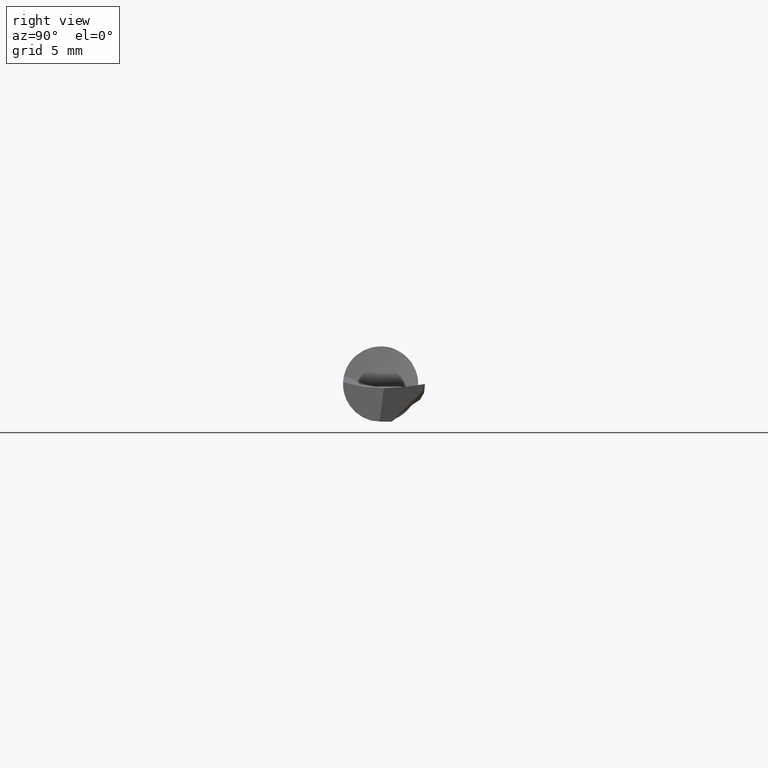
[diagram: clean part render]
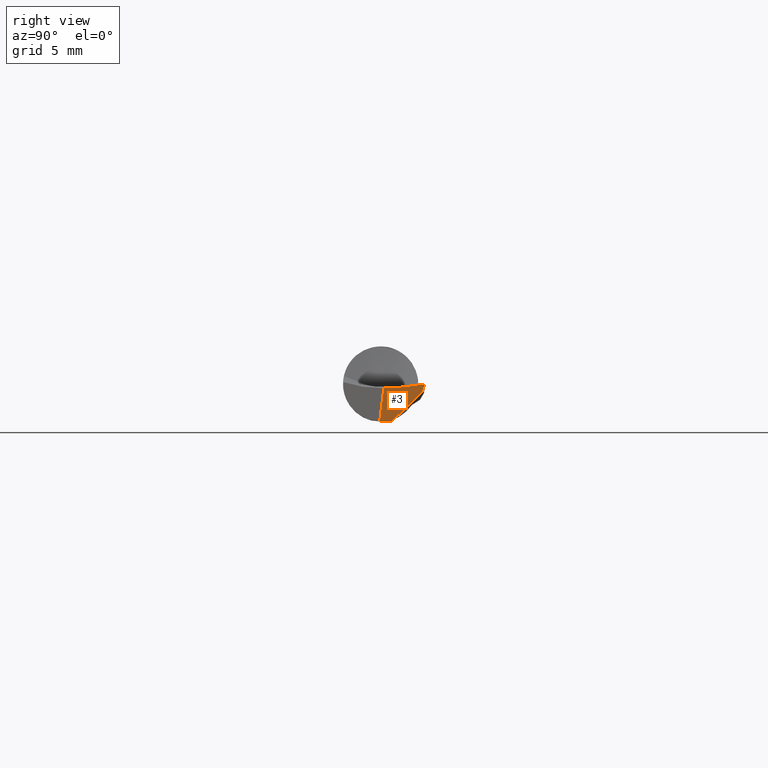
[diagram: same view with one face highlighted and labeled with its STEP entity id]
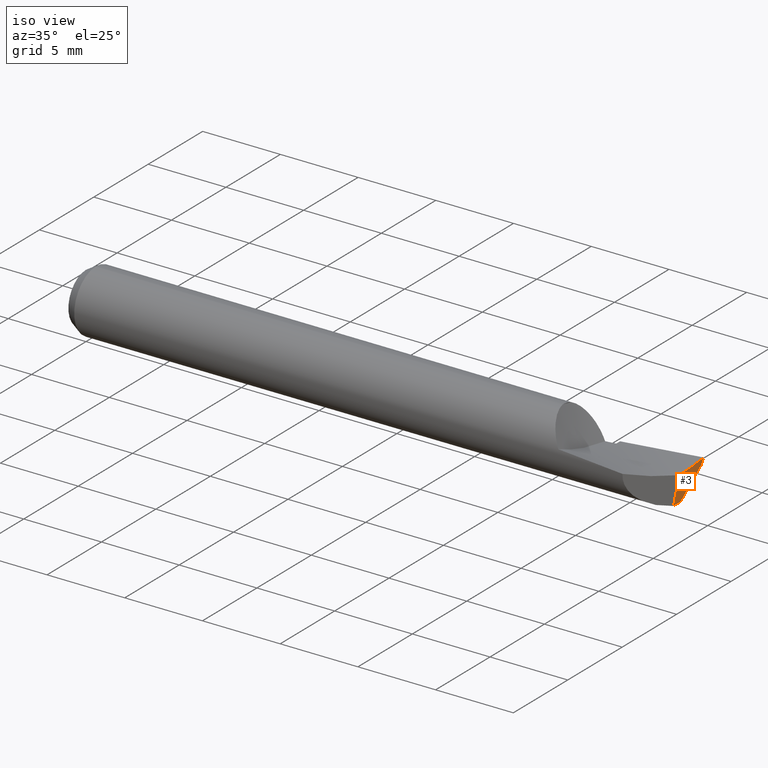
[diagram: same view with one face highlighted and labeled with its STEP entity id]
A machine part, right view. The second image highlights one B-rep face of the part: STEP entity #3.
A second angle (iso view) of the same face is appended — the face is thin or edge-on in the first view.
In plain terms, the highlighted planar face has unit normal (-0.9925, 0.0087, 0.1219).
Its self-contained STEP definition (entity closure, byte-faithful):
#1 = CARTESIAN_POINT ( 'NONE',  ( 1.489609005750359483, -0.001329931869569869361, -0.07799149631257126791 ) ) ;
#3 = ADVANCED_FACE ( 'NONE', ( #514 ), #50, .F. ) ;
#10 = CARTESIAN_POINT ( 'NONE',  ( 1.492937526068931042, 0.04743936089112409799, -0.05435003363301930263 ) ) ;
#18 = VERTEX_POINT ( 'NONE', #427 ) ;
#19 = B_SPLINE_CURVE_WITH_KNOTS ( 'NONE', 3,
 ( #396, #294, #496, #29 ),
 .UNSPECIFIED., .F., .F.,
 ( 4, 4 ),
 ( 4.377117882982191852E-19, 0.002180545539404321869 ),
 .UNSPECIFIED. ) ;
#26 = CARTESIAN_POINT ( 'NONE',  ( 1.489597512497185861, -0.002527279204093492871, -0.07799999999999999989 ) ) ;
#29 = CARTESIAN_POINT ( 'NONE',  ( 1.498210553536294398, 0.006610553536293644825, -0.008504524376991735857 ) ) ;
#44 = CARTESIAN_POINT ( 'NONE',  ( 1.498210553536294398, 0.006610553536293644825, -0.008504524376991735857 ) ) ;
#50 = PLANE ( 'NONE',  #614 ) ;
#55 = DIRECTION ( 'NONE',  ( -0.9925083585251990304, 0.008661489226065363992, 0.1218693434051474900 ) ) ;
#73 = LINE ( 'NONE', #271, #207 ) ;
#74 = CARTESIAN_POINT ( 'NONE',  ( 1.496366815870363354, 0.07375142760749275883, -0.02829182226816429058 ) ) ;
#83 = ORIENTED_EDGE ( 'NONE', *, *, #160, .T. ) ;
#98 = EDGE_CURVE ( 'NONE', #358, #179, #622, .T. ) ;
#125 = CARTESIAN_POINT ( 'NONE',  ( 1.489605292493080491, -0.001994707506919228893, -0.07797449032832366733 ) ) ;
#134 = CARTESIAN_POINT ( 'NONE',  ( 1.498569398542515474, 0.08811034926280761348, -0.01137442524580792487 ) ) ;
#146 = B_SPLINE_CURVE_WITH_KNOTS ( 'NONE', 3,
 ( #178, #398, #479, #10, #595, #74, #381 ),
 .UNSPECIFIED., .F., .F.,
 ( 4, 3, 4 ),
 ( 2.235854684673608454E-05, 0.0008845270549140174217, 0.002301473312982700581 ),
 .UNSPECIFIED. ) ;
#160 = EDGE_CURVE ( 'NONE', #18, #336, #537, .T. ) ;
#178 = CARTESIAN_POINT ( 'NONE',  ( 1.489822824260899736, 0.02329089165813441609, -0.07799999999999999989 ) ) ;
#179 = VERTEX_POINT ( 'NONE', #125 ) ;
#204 = CARTESIAN_POINT ( 'NONE',  ( 1.500000000000000222, 0.09199999999999999845, 0.000000000000000000 ) ) ;
#207 = VECTOR ( 'NONE', #273, 39.37007874015748854 ) ;
#218 = EDGE_CURVE ( 'NONE', #467, #18, #146, .T. ) ;
#224 = CARTESIAN_POINT ( 'NONE',  ( 1.498251624336321752, 0.08724183378585957660, -0.01390066285178455374 ) ) ;
#228 = CARTESIAN_POINT ( 'NONE',  ( 1.499046133992733010, 0.08941090270279790364, -0.007584307266738654803 ) ) ;
#238 = DIRECTION ( 'NONE',  ( -0.008726535498366806698, -0.9999619230641711987, 0.000000000000000000 ) ) ;
#240 = CARTESIAN_POINT ( 'NONE',  ( 1.499284567383817990, 0.09005917767487985059, -0.005688571223023153670 ) ) ;
#270 = CARTESIAN_POINT ( 'NONE',  ( 1.489619567728670324, 0.000000000000000000, -0.07799999999999999989 ) ) ;
#271 = CARTESIAN_POINT ( 'NONE',  ( 1.484275291761521176, -0.007324708238478513066, -0.1210033964222349545 ) ) ;
#273 = DIRECTION ( 'NONE',  ( 0.1220122463319277123, 0.1220122463319270739, 0.9850005195379716305 ) ) ;
#275 = CARTESIAN_POINT ( 'NONE',  ( 1.499761478885182520, 0.09135439532460938594, -0.001896640252115041085 ) ) ;
#288 = LINE ( 'NONE', #26, #468 ) ;
#294 = CARTESIAN_POINT ( 'NONE',  ( 1.499096292141820941, 0.06381697989133203186, -0.005356808034226923608 ) ) ;
#307 = VERTEX_POINT ( 'NONE', #44 ) ;
#315 = ORIENTED_EDGE ( 'NONE', *, *, #218, .T. ) ;
#324 = CARTESIAN_POINT ( 'NONE',  ( 1.489822824260899736, 0.02329089165813441609, -0.07799999999999999989 ) ) ;
#336 = VERTEX_POINT ( 'NONE', #204 ) ;
#344 = CARTESIAN_POINT ( 'NONE',  ( 1.499523001240421038, 0.09070745391265556956, -0.003792831478067595907 ) ) ;
#351 = CARTESIAN_POINT ( 'NONE',  ( 1.489619567728670324, 0.000000000000000000, -0.07799999999999999989 ) ) ;
#358 = VERTEX_POINT ( 'NONE', #351 ) ;
#381 = CARTESIAN_POINT ( 'NONE',  ( 1.498092766588149827, 0.08680668762895282775, -0.01516347944558048971 ) ) ;
#388 = ORIENTED_EDGE ( 'NONE', *, *, #605, .F. ) ;
#396 = CARTESIAN_POINT ( 'NONE',  ( 1.500000000000000222, 0.09199999999999999845, 0.000000000000000000 ) ) ;
#398 = CARTESIAN_POINT ( 'NONE',  ( 1.490858271440168137, 0.03136457811169572618, -0.07014109303256171879 ) ) ;
#423 = DIRECTION ( 'NONE',  ( 0.1218739150664907706, 0.000000000000000000, 0.9925455903012041503 ) ) ;
#427 = CARTESIAN_POINT ( 'NONE',  ( 1.498092766588149827, 0.08680668762895282775, -0.01516347944558048971 ) ) ;
#432 = CARTESIAN_POINT ( 'NONE',  ( 1.489605292493080491, -0.001994707506919228893, -0.07797449032832366733 ) ) ;
#440 = CARTESIAN_POINT ( 'NONE',  ( 1.498410501685699003, 0.08767638785338330298, -0.01263764454411506546 ) ) ;
#449 = CARTESIAN_POINT ( 'NONE',  ( 1.500000000000000222, 0.09199999999999999845, 0.000000000000000000 ) ) ;
#450 = ORIENTED_EDGE ( 'NONE', *, *, #98, .F. ) ;
#457 = ORIENTED_EDGE ( 'NONE', *, *, #607, .T. ) ;
#467 = VERTEX_POINT ( 'NONE', #324 ) ;
#468 = VECTOR ( 'NONE', #238, 39.37007874015748854 ) ;
#469 = EDGE_CURVE ( 'NONE', #179, #307, #73, .T. ) ;
#478 = CARTESIAN_POINT ( 'NONE',  ( 1.489613764421618081, -0.0006649931214030996036, -0.07800000000000001377 ) ) ;
#479 = CARTESIAN_POINT ( 'NONE',  ( 1.491896506940967537, 0.03941421349642965088, -0.06225776851748323487 ) ) ;
#496 = CARTESIAN_POINT ( 'NONE',  ( 1.498501169951760081, 0.03524904101244407534, -0.008173126261426267095 ) ) ;
#500 = ORIENTED_EDGE ( 'NONE', *, *, #469, .F. ) ;
#514 = FACE_OUTER_BOUND ( 'NONE', #564, .T. ) ;
#532 = CARTESIAN_POINT ( 'NONE',  ( 1.498807744273227494, 0.08876129259361044410, -0.009479592756750187046 ) ) ;
#536 = CARTESIAN_POINT ( 'NONE',  ( 1.498092766588149827, 0.08680668762895282775, -0.01516347944558048971 ) ) ;
#537 = B_SPLINE_CURVE_WITH_KNOTS ( 'NONE', 3,
 ( #536, #224, #440, #134, #532, #228, #240, #344, #275, #449 ),
 .UNSPECIFIED., .F., .F.,
 ( 4, 3, 3, 4 ),
 ( 0.000000000000000000, 0.0001024966115475624978, 0.0002562418370749408180, 0.0004099873628111689694 ),
 .UNSPECIFIED. ) ;
#564 = EDGE_LOOP ( 'NONE', ( #315, #83, #457, #500, #450, #388 ) ) ;
#595 = CARTESIAN_POINT ( 'NONE',  ( 1.494648394059602037, 0.06062832872964851738, -0.04135402796018600863 ) ) ;
#605 = EDGE_CURVE ( 'NONE', #467, #358, #288, .T. ) ;
#607 = EDGE_CURVE ( 'NONE', #336, #307, #19, .T. ) ;
#614 = AXIS2_PLACEMENT_3D ( 'NONE', #627, #55, #423 ) ;
#622 =( BOUNDED_CURVE ( )  B_SPLINE_CURVE ( 3, ( #270, #478, #1, #432 ),
 .UNSPECIFIED., .F., .T. ) 
 B_SPLINE_CURVE_WITH_KNOTS ( ( 4, 4 ),
 ( 6.212232684215151401, 6.237808645622682668 ),
 .UNSPECIFIED. ) 
 CURVE ( )  GEOMETRIC_REPRESENTATION_ITEM ( )  RATIONAL_B_SPLINE_CURVE ( ( 1.000000000000000000, 0.9999454899260264984, 0.9999454899260264984, 1.000000000000000000 ) ) 
 REPRESENTATION_ITEM ( '' )  );
#627 = CARTESIAN_POINT ( 'NONE',  ( 1.500000000000000222, 0.09199999999999999845, 0.000000000000000000 ) ) ;